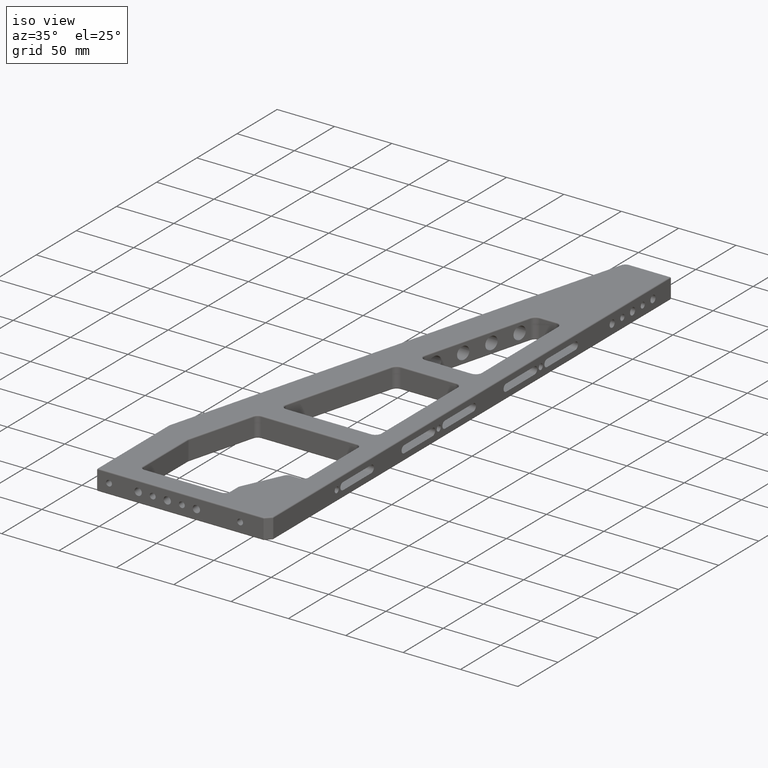
[diagram: clean part render]
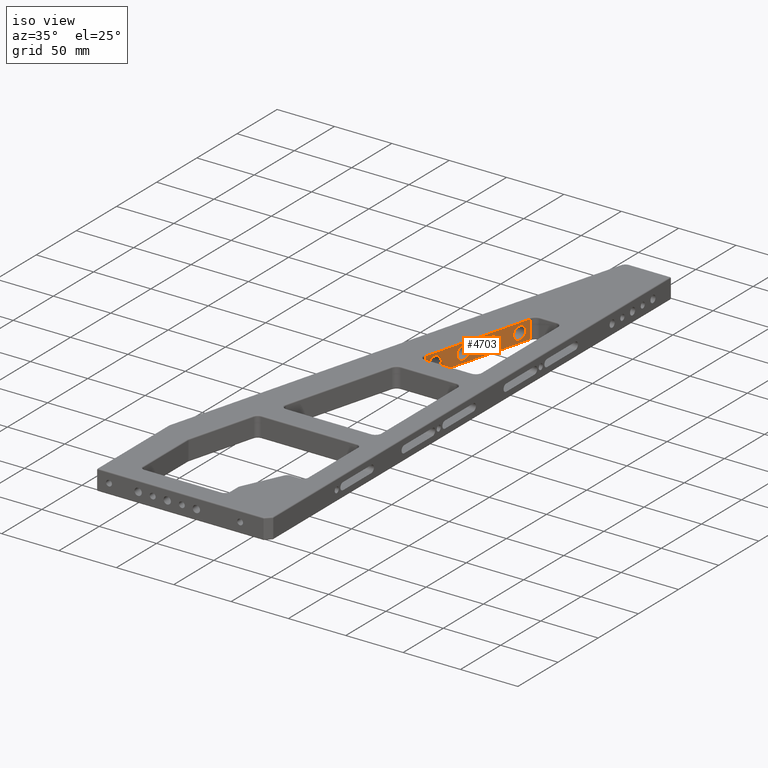
[diagram: same view with one face highlighted and labeled with its STEP entity id]
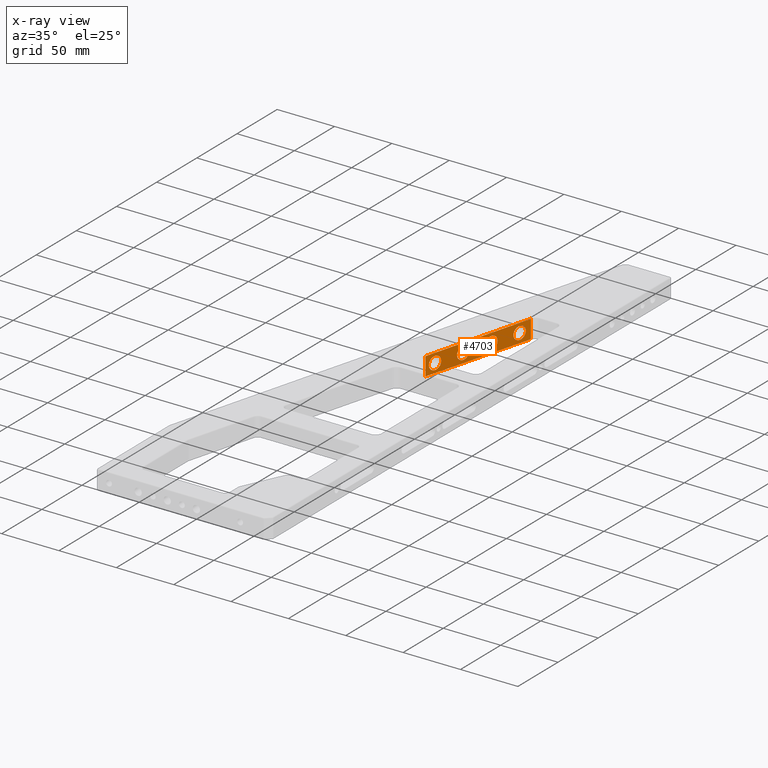
[diagram: x-ray of the same camera — body ghosted, the highlighted face saturated]
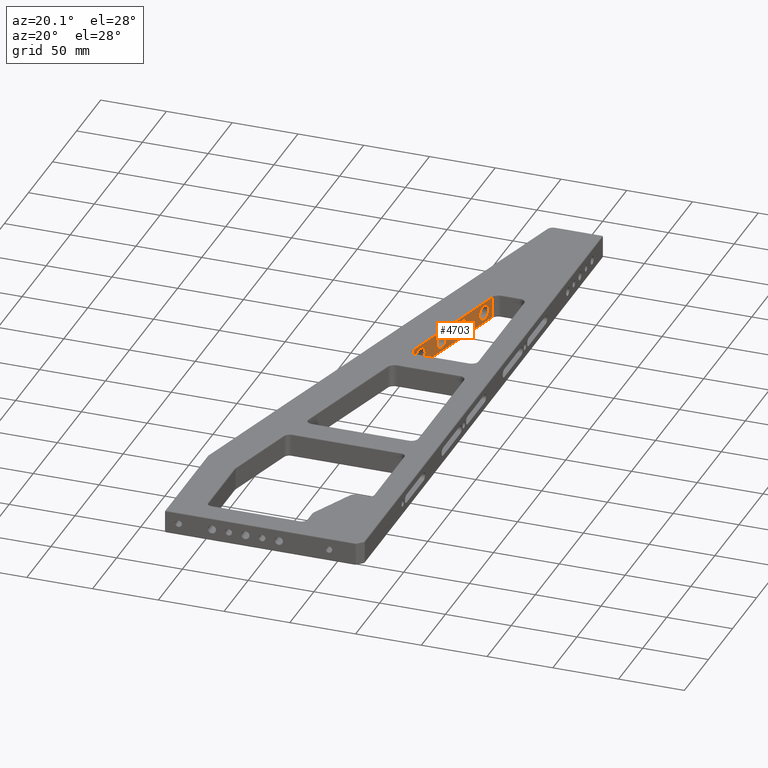
[diagram: same view with one face highlighted and labeled with its STEP entity id]
A machine part, iso view. The second image highlights one B-rep face of the part: STEP entity #4703.
The next image is the same camera in x-ray: the body ghosted, the highlighted face saturated — about 0% of this face is hidden behind the body in this view.
A second angle (auxiliary view) of the same face is appended — the face is thin or edge-on in the first view.
In plain terms, the highlighted planar face has unit normal (-0.9659, 0.2588, 0).
Its self-contained STEP definition (entity closure, byte-faithful):
#205 = CARTESIAN_POINT ( 'NONE',  ( 106.3895672009524100, 381.7499999999998900, -2.100000000000021800 ) ) ;
#266 = VECTOR ( 'NONE', #6117, 1000.000000000000000 ) ;
#274 = EDGE_CURVE ( 'NONE', #1776, #1069, #4027, .T. ) ;
#276 = CARTESIAN_POINT ( 'NONE',  ( 96.60942167721654500, 345.2499999999999400, 9.000000000000007100 ) ) ;
#313 = CARTESIAN_POINT ( 'NONE',  ( 96.60942167721655900, 345.2499999999999400, -2.100000000000021800 ) ) ;
#317 =( BOUNDED_CURVE ( )  B_SPLINE_CURVE ( 3, ( #4722, #4927, #6706, #4942 ),
 .UNSPECIFIED., .F., .T. ) 
 B_SPLINE_CURVE_WITH_KNOTS ( ( 4, 4 ),
 ( 0.0000000000000000000, 3.141592653589793100 ),
 .UNSPECIFIED. ) 
 CURVE ( )  GEOMETRIC_REPRESENTATION_ITEM ( )  RATIONAL_B_SPLINE_CURVE ( ( 1.000000000000000000, 0.3333333333333333700, 0.3333333333333333700, 1.000000000000000000 ) ) 
 REPRESENTATION_ITEM ( '' )  );
#381 = ORIENTED_EDGE ( 'NONE', *, *, #1258, .T. ) ;
#419 = VERTEX_POINT ( 'NONE', #2305 ) ;
#442 = CARTESIAN_POINT ( 'NONE',  ( 99.58365771320197300, 356.3499999999999700, 9.000000000000007100 ) ) ;
#481 = CARTESIAN_POINT ( 'NONE',  ( 92.77774822545157500, 330.9499999999999900, 9.000000000000007100 ) ) ;
#482 =( BOUNDED_CURVE ( )  B_SPLINE_CURVE ( 3, ( #6786, #1428, #2728, #5974 ),
 .UNSPECIFIED., .F., .F. ) 
 B_SPLINE_CURVE_WITH_KNOTS ( ( 4, 4 ),
 ( 3.141592653589793100, 6.283185307179586200 ),
 .UNSPECIFIED. ) 
 CURVE ( )  GEOMETRIC_REPRESENTATION_ITEM ( )  RATIONAL_B_SPLINE_CURVE ( ( 1.000000000000000000, 0.3333333333333333700, 0.3333333333333333700, 1.000000000000000000 ) ) 
 REPRESENTATION_ITEM ( '' )  );
#496 = EDGE_CURVE ( 'NONE', #419, #6163, #1739, .T. ) ;
#604 = VERTEX_POINT ( 'NONE', #1844 ) ;
#669 = LINE ( 'NONE', #867, #5121 ) ;
#867 = CARTESIAN_POINT ( 'NONE',  ( 82.15198056600233700, 291.2940952255126500, 17.00000000000001400 ) ) ;
#931 = PLANE ( 'NONE',  #5914 ) ;
#1007 = LINE ( 'NONE', #2448, #6390 ) ;
#1069 = VERTEX_POINT ( 'NONE', #276 ) ;
#1070 = EDGE_CURVE ( 'NONE', #3092, #2652, #4731, .T. ) ;
#1108 = ORIENTED_EDGE ( 'NONE', *, *, #5781, .T. ) ;
#1175 = EDGE_LOOP ( 'NONE', ( #4034, #4093 ) ) ;
#1234 = CARTESIAN_POINT ( 'NONE',  ( 106.3895672009524000, 381.7499999999998900, 9.000000000000007100 ) ) ;
#1258 = EDGE_CURVE ( 'NONE', #604, #3123, #5799, .T. ) ;
#1285 = EDGE_CURVE ( 'NONE', #1069, #1776, #482, .T. ) ;
#1313 = CARTESIAN_POINT ( 'NONE',  ( 82.99760270171573500, 294.4499999999999300, 20.10000000000003700 ) ) ;
#1321 = CARTESIAN_POINT ( 'NONE',  ( 106.3895672009524000, 381.7499999999998900, 9.000000000000007100 ) ) ;
#1330 = CARTESIAN_POINT ( 'NONE',  ( 82.15198056600233700, 291.2940952255126500, 17.00000000000001400 ) ) ;
#1428 = CARTESIAN_POINT ( 'NONE',  ( 96.60942167721655900, 345.2499999999999400, 20.10000000000003700 ) ) ;
#1484 = DIRECTION ( 'NONE',  ( -0.9659258262890692000, 0.2588190451025174100, 0.0000000000000000000 ) ) ;
#1739 =( BOUNDED_CURVE ( )  B_SPLINE_CURVE ( 3, ( #5285, #3029, #3670, #481 ),
 .UNSPECIFIED., .F., .T. ) 
 B_SPLINE_CURVE_WITH_KNOTS ( ( 4, 4 ),
 ( 3.141592653589793100, 6.283185307179586200 ),
 .UNSPECIFIED. ) 
 CURVE ( )  GEOMETRIC_REPRESENTATION_ITEM ( )  RATIONAL_B_SPLINE_CURVE ( ( 1.000000000000000000, 0.3333333333333333700, 0.3333333333333333700, 1.000000000000000000 ) ) 
 REPRESENTATION_ITEM ( '' )  );
#1775 = FACE_OUTER_BOUND ( 'NONE', #4191, .T. ) ;
#1776 = VERTEX_POINT ( 'NONE', #442 ) ;
#1844 = CARTESIAN_POINT ( 'NONE',  ( 107.6071538469586400, 386.2940952255125900, 1.000000000000000900 ) ) ;
#1849 = CARTESIAN_POINT ( 'NONE',  ( 82.15198056600233700, 291.2940952255126500, 1.000000000000000900 ) ) ;
#1863 = CARTESIAN_POINT ( 'NONE',  ( 85.97183873770116200, 305.5500000000000100, 20.10000000000003700 ) ) ;
#1948 = FACE_BOUND ( 'NONE', #3624, .T. ) ;
#1956 = CARTESIAN_POINT ( 'NONE',  ( 85.97183873770114800, 305.5500000000000100, 9.000000000000007100 ) ) ;
#2087 = DIRECTION ( 'NONE',  ( 0.2588190451025174100, 0.9659258262890692000, -0.0000000000000000000 ) ) ;
#2233 = CARTESIAN_POINT ( 'NONE',  ( 92.77774822545157500, 330.9499999999999900, 9.000000000000007100 ) ) ;
#2275 = ORIENTED_EDGE ( 'NONE', *, *, #2800, .T. ) ;
#2297 = VERTEX_POINT ( 'NONE', #4114 ) ;
#2305 = CARTESIAN_POINT ( 'NONE',  ( 89.80351218946613300, 319.8499999999999700, 9.000000000000007100 ) ) ;
#2335 = CARTESIAN_POINT ( 'NONE',  ( 103.4153311649669900, 370.6499999999998600, 9.000000000000007100 ) ) ;
#2407 = CARTESIAN_POINT ( 'NONE',  ( 107.6071538469586400, 386.2940952255125900, 17.00000000000001400 ) ) ;
#2448 = CARTESIAN_POINT ( 'NONE',  ( 82.15198056600233700, 291.2940952255126500, 0.0000000000000000000 ) ) ;
#2563 =( BOUNDED_CURVE ( )  B_SPLINE_CURVE ( 3, ( #3932, #205, #5564, #2335 ),
 .UNSPECIFIED., .F., .F. ) 
 B_SPLINE_CURVE_WITH_KNOTS ( ( 4, 4 ),
 ( 0.0000000000000000000, 3.141592653589793100 ),
 .UNSPECIFIED. ) 
 CURVE ( )  GEOMETRIC_REPRESENTATION_ITEM ( )  RATIONAL_B_SPLINE_CURVE ( ( 1.000000000000000000, 0.3333333333333333700, 0.3333333333333333700, 1.000000000000000000 ) ) 
 REPRESENTATION_ITEM ( '' )  );
#2640 = CARTESIAN_POINT ( 'NONE',  ( 99.58365771320198700, 356.3499999999999700, -2.100000000000021800 ) ) ;
#2652 = VERTEX_POINT ( 'NONE', #4219 ) ;
#2655 = LINE ( 'NONE', #5867, #5512 ) ;
#2656 = EDGE_LOOP ( 'NONE', ( #2275, #6881 ) ) ;
#2728 = CARTESIAN_POINT ( 'NONE',  ( 99.58365771320198700, 356.3499999999999700, 20.10000000000003700 ) ) ;
#2800 = EDGE_CURVE ( 'NONE', #6163, #419, #317, .T. ) ;
#2950 = CARTESIAN_POINT ( 'NONE',  ( 99.58365771320197300, 356.3499999999999700, 9.000000000000007100 ) ) ;
#3029 = CARTESIAN_POINT ( 'NONE',  ( 89.80351218946614700, 319.8499999999999700, 20.10000000000003700 ) ) ;
#3049 = CARTESIAN_POINT ( 'NONE',  ( 82.99760270171573500, 294.4499999999999300, -2.100000000000021800 ) ) ;
#3085 = VERTEX_POINT ( 'NONE', #1234 ) ;
#3092 = VERTEX_POINT ( 'NONE', #5053 ) ;
#3123 = VERTEX_POINT ( 'NONE', #2407 ) ;
#3221 = FACE_BOUND ( 'NONE', #2656, .T. ) ;
#3305 = EDGE_LOOP ( 'NONE', ( #5850, #5585 ) ) ;
#3317 = EDGE_CURVE ( 'NONE', #4147, #604, #2655, .T. ) ;
#3432 = CARTESIAN_POINT ( 'NONE',  ( 103.4153311649669900, 370.6499999999998600, 20.10000000000003700 ) ) ;
#3624 = EDGE_LOOP ( 'NONE', ( #4813, #3972 ) ) ;
#3670 = CARTESIAN_POINT ( 'NONE',  ( 92.77774822545157500, 330.9499999999999900, 20.10000000000003700 ) ) ;
#3932 = CARTESIAN_POINT ( 'NONE',  ( 106.3895672009524000, 381.7499999999998900, 9.000000000000007100 ) ) ;
#3972 = ORIENTED_EDGE ( 'NONE', *, *, #1285, .T. ) ;
#4003 = CARTESIAN_POINT ( 'NONE',  ( 107.6071538469586400, 386.2940952255125900, 18.00000000000001400 ) ) ;
#4027 =( BOUNDED_CURVE ( )  B_SPLINE_CURVE ( 3, ( #2950, #2640, #313, #6169 ),
 .UNSPECIFIED., .F., .F. ) 
 B_SPLINE_CURVE_WITH_KNOTS ( ( 4, 4 ),
 ( 0.0000000000000000000, 3.141592653589793100 ),
 .UNSPECIFIED. ) 
 CURVE ( )  GEOMETRIC_REPRESENTATION_ITEM ( )  RATIONAL_B_SPLINE_CURVE ( ( 1.000000000000000000, 0.3333333333333333700, 0.3333333333333333700, 1.000000000000000000 ) ) 
 REPRESENTATION_ITEM ( '' )  );
#4034 = ORIENTED_EDGE ( 'NONE', *, *, #5205, .T. ) ;
#4087 = DIRECTION ( 'NONE',  ( -0.2588190451025174100, -0.9659258262890692000, 0.0000000000000000000 ) ) ;
#4093 = ORIENTED_EDGE ( 'NONE', *, *, #1070, .T. ) ;
#4114 = CARTESIAN_POINT ( 'NONE',  ( 103.4153311649669900, 370.6499999999998600, 9.000000000000007100 ) ) ;
#4147 = VERTEX_POINT ( 'NONE', #1849 ) ;
#4191 = EDGE_LOOP ( 'NONE', ( #1108, #4305, #381, #4678 ) ) ;
#4219 = CARTESIAN_POINT ( 'NONE',  ( 85.97183873770114800, 305.5500000000000100, 9.000000000000007100 ) ) ;
#4305 = ORIENTED_EDGE ( 'NONE', *, *, #3317, .T. ) ;
#4547 = CARTESIAN_POINT ( 'NONE',  ( 106.3895672009524100, 381.7499999999998900, 20.10000000000003700 ) ) ;
#4612 = EDGE_CURVE ( 'NONE', #3085, #2297, #2563, .T. ) ;
#4622 =( BOUNDED_CURVE ( )  B_SPLINE_CURVE ( 3, ( #5607, #3432, #4547, #1321 ),
 .UNSPECIFIED., .F., .F. ) 
 B_SPLINE_CURVE_WITH_KNOTS ( ( 4, 4 ),
 ( 3.141592653589793100, 6.283185307179586200 ),
 .UNSPECIFIED. ) 
 CURVE ( )  GEOMETRIC_REPRESENTATION_ITEM ( )  RATIONAL_B_SPLINE_CURVE ( ( 1.000000000000000000, 0.3333333333333333700, 0.3333333333333333700, 1.000000000000000000 ) ) 
 REPRESENTATION_ITEM ( '' )  );
#4678 = ORIENTED_EDGE ( 'NONE', *, *, #5813, .T. ) ;
#4700 = VERTEX_POINT ( 'NONE', #1330 ) ;
#4702 = CARTESIAN_POINT ( 'NONE',  ( 80.46548283324168000, 285.0000000000000600, 0.0000000000000000000 ) ) ;
#4703 = ADVANCED_FACE ( 'NONE', ( #6250, #3221, #6083, #1948, #1775 ), #931, .F. ) ;
#4722 = CARTESIAN_POINT ( 'NONE',  ( 92.77774822545157500, 330.9499999999999900, 9.000000000000007100 ) ) ;
#4731 =( BOUNDED_CURVE ( )  B_SPLINE_CURVE ( 3, ( #6676, #1313, #1863, #6203 ),
 .UNSPECIFIED., .F., .F. ) 
 B_SPLINE_CURVE_WITH_KNOTS ( ( 4, 4 ),
 ( 3.141592653589793100, 6.283185307179586200 ),
 .UNSPECIFIED. ) 
 CURVE ( )  GEOMETRIC_REPRESENTATION_ITEM ( )  RATIONAL_B_SPLINE_CURVE ( ( 1.000000000000000000, 0.3333333333333333700, 0.3333333333333333700, 1.000000000000000000 ) ) 
 REPRESENTATION_ITEM ( '' )  );
#4813 = ORIENTED_EDGE ( 'NONE', *, *, #274, .T. ) ;
#4927 = CARTESIAN_POINT ( 'NONE',  ( 92.77774822545157500, 330.9499999999999900, -2.100000000000021800 ) ) ;
#4942 = CARTESIAN_POINT ( 'NONE',  ( 89.80351218946613300, 319.8499999999999700, 9.000000000000007100 ) ) ;
#5053 = CARTESIAN_POINT ( 'NONE',  ( 82.99760270171572100, 294.4499999999999900, 9.000000000000007100 ) ) ;
#5121 = VECTOR ( 'NONE', #4087, 1000.000000000000000 ) ;
#5205 = EDGE_CURVE ( 'NONE', #2652, #3092, #6092, .T. ) ;
#5244 = DIRECTION ( 'NONE',  ( -0.2588190451025174100, -0.9659258262890692000, 0.0000000000000000000 ) ) ;
#5285 = CARTESIAN_POINT ( 'NONE',  ( 89.80351218946613300, 319.8499999999999700, 9.000000000000007100 ) ) ;
#5512 = VECTOR ( 'NONE', #2087, 1000.000000000000000 ) ;
#5564 = CARTESIAN_POINT ( 'NONE',  ( 103.4153311649669900, 370.6499999999998600, -2.100000000000021800 ) ) ;
#5585 = ORIENTED_EDGE ( 'NONE', *, *, #6889, .T. ) ;
#5607 = CARTESIAN_POINT ( 'NONE',  ( 103.4153311649669900, 370.6499999999998600, 9.000000000000007100 ) ) ;
#5660 = DIRECTION ( 'NONE',  ( -0.0000000000000000000, 0.0000000000000000000, -1.000000000000000000 ) ) ;
#5781 = EDGE_CURVE ( 'NONE', #4700, #4147, #1007, .T. ) ;
#5799 = LINE ( 'NONE', #4003, #266 ) ;
#5813 = EDGE_CURVE ( 'NONE', #3123, #4700, #669, .T. ) ;
#5850 = ORIENTED_EDGE ( 'NONE', *, *, #4612, .T. ) ;
#5867 = CARTESIAN_POINT ( 'NONE',  ( 80.46548283324168000, 285.0000000000000600, 1.000000000000000900 ) ) ;
#5914 = AXIS2_PLACEMENT_3D ( 'NONE', #4702, #1484, #5244 ) ;
#5974 = CARTESIAN_POINT ( 'NONE',  ( 99.58365771320197300, 356.3499999999999700, 9.000000000000007100 ) ) ;
#6083 = FACE_BOUND ( 'NONE', #1175, .T. ) ;
#6092 =( BOUNDED_CURVE ( )  B_SPLINE_CURVE ( 3, ( #1956, #6273, #3049, #6818 ),
 .UNSPECIFIED., .F., .F. ) 
 B_SPLINE_CURVE_WITH_KNOTS ( ( 4, 4 ),
 ( 0.0000000000000000000, 3.141592653589793100 ),
 .UNSPECIFIED. ) 
 CURVE ( )  GEOMETRIC_REPRESENTATION_ITEM ( )  RATIONAL_B_SPLINE_CURVE ( ( 1.000000000000000000, 0.3333333333333333700, 0.3333333333333333700, 1.000000000000000000 ) ) 
 REPRESENTATION_ITEM ( '' )  );
#6117 = DIRECTION ( 'NONE',  ( 0.0000000000000000000, -0.0000000000000000000, 1.000000000000000000 ) ) ;
#6163 = VERTEX_POINT ( 'NONE', #2233 ) ;
#6169 = CARTESIAN_POINT ( 'NONE',  ( 96.60942167721654500, 345.2499999999999400, 9.000000000000007100 ) ) ;
#6203 = CARTESIAN_POINT ( 'NONE',  ( 85.97183873770114800, 305.5500000000000100, 9.000000000000007100 ) ) ;
#6250 = FACE_BOUND ( 'NONE', #3305, .T. ) ;
#6273 = CARTESIAN_POINT ( 'NONE',  ( 85.97183873770116200, 305.5500000000000100, -2.100000000000021800 ) ) ;
#6390 = VECTOR ( 'NONE', #5660, 1000.000000000000000 ) ;
#6676 = CARTESIAN_POINT ( 'NONE',  ( 82.99760270171572100, 294.4499999999999900, 9.000000000000007100 ) ) ;
#6706 = CARTESIAN_POINT ( 'NONE',  ( 89.80351218946614700, 319.8499999999999700, -2.100000000000021800 ) ) ;
#6786 = CARTESIAN_POINT ( 'NONE',  ( 96.60942167721654500, 345.2499999999999400, 9.000000000000007100 ) ) ;
#6818 = CARTESIAN_POINT ( 'NONE',  ( 82.99760270171572100, 294.4499999999999900, 9.000000000000007100 ) ) ;
#6881 = ORIENTED_EDGE ( 'NONE', *, *, #496, .T. ) ;
#6889 = EDGE_CURVE ( 'NONE', #2297, #3085, #4622, .T. ) ;